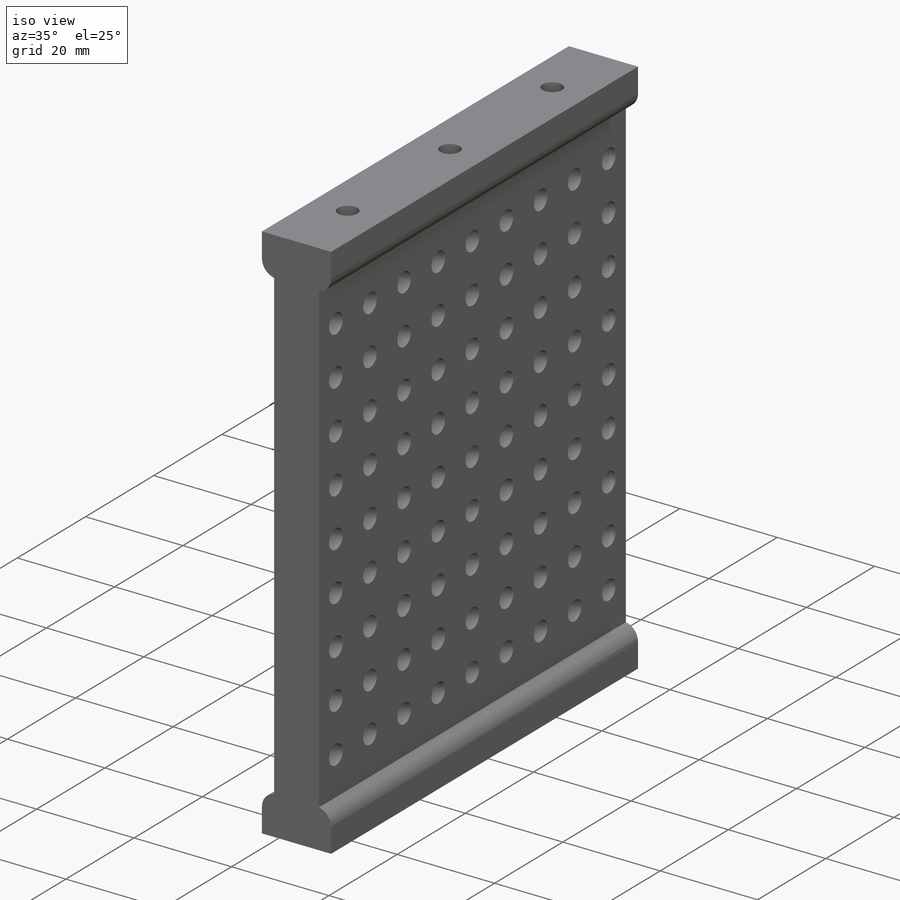
[diagram: iso view]
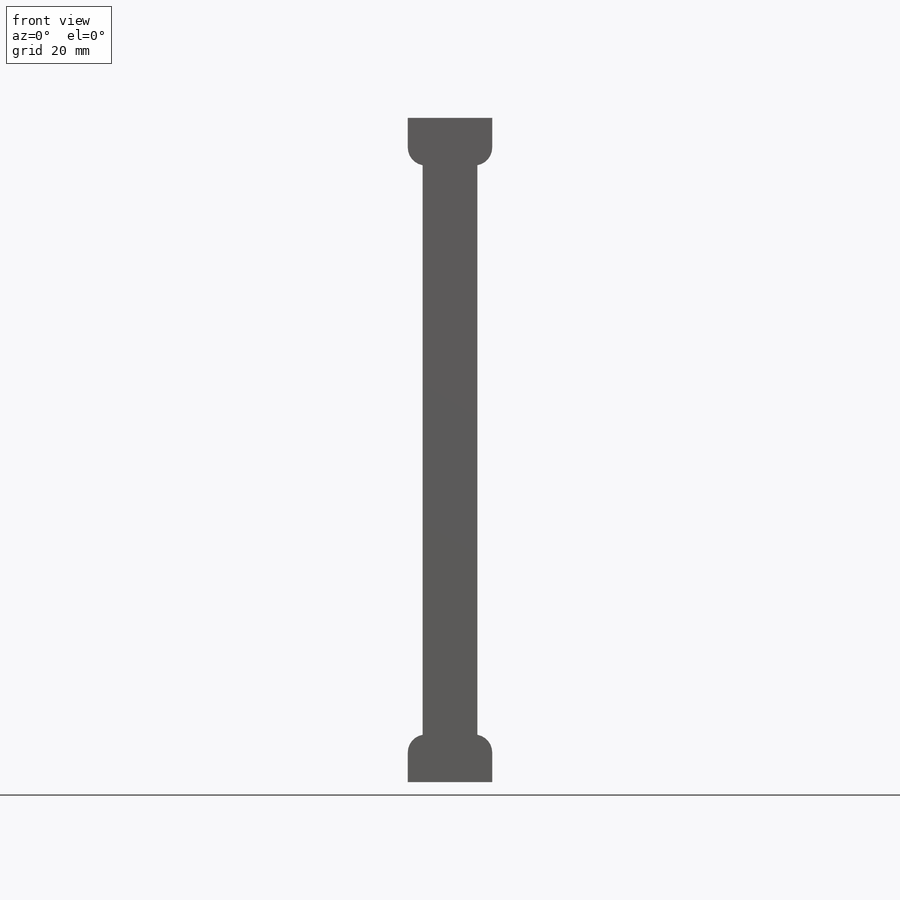
[diagram: front view]
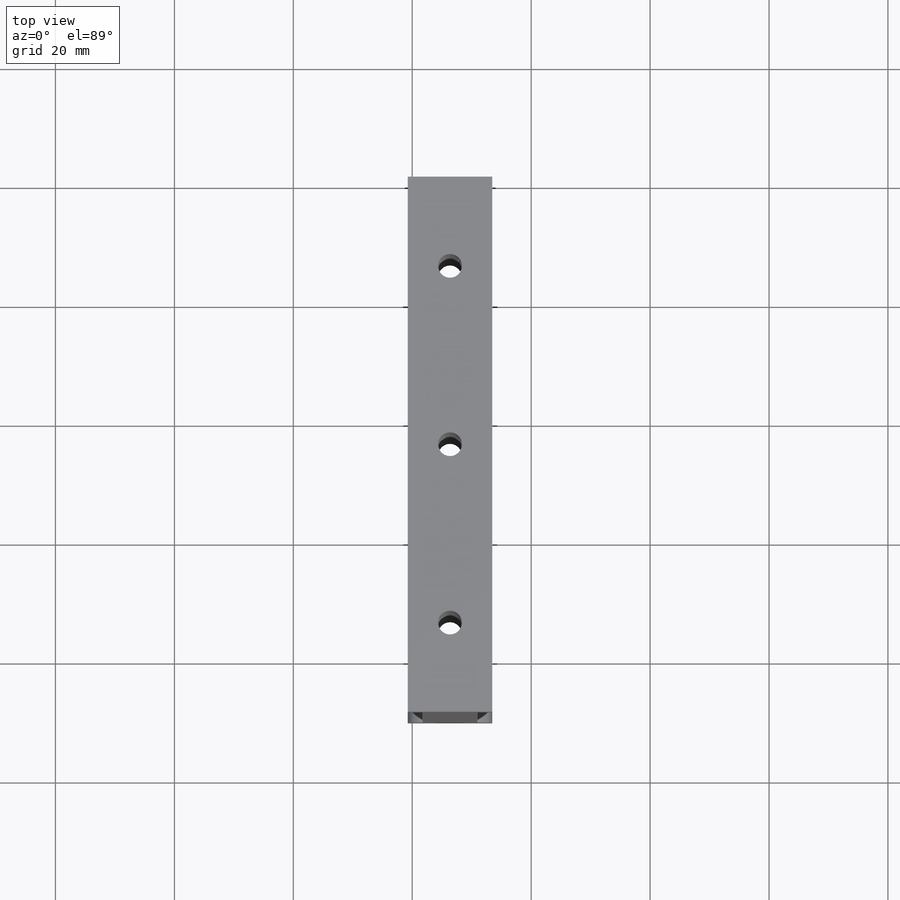
[diagram: top view]
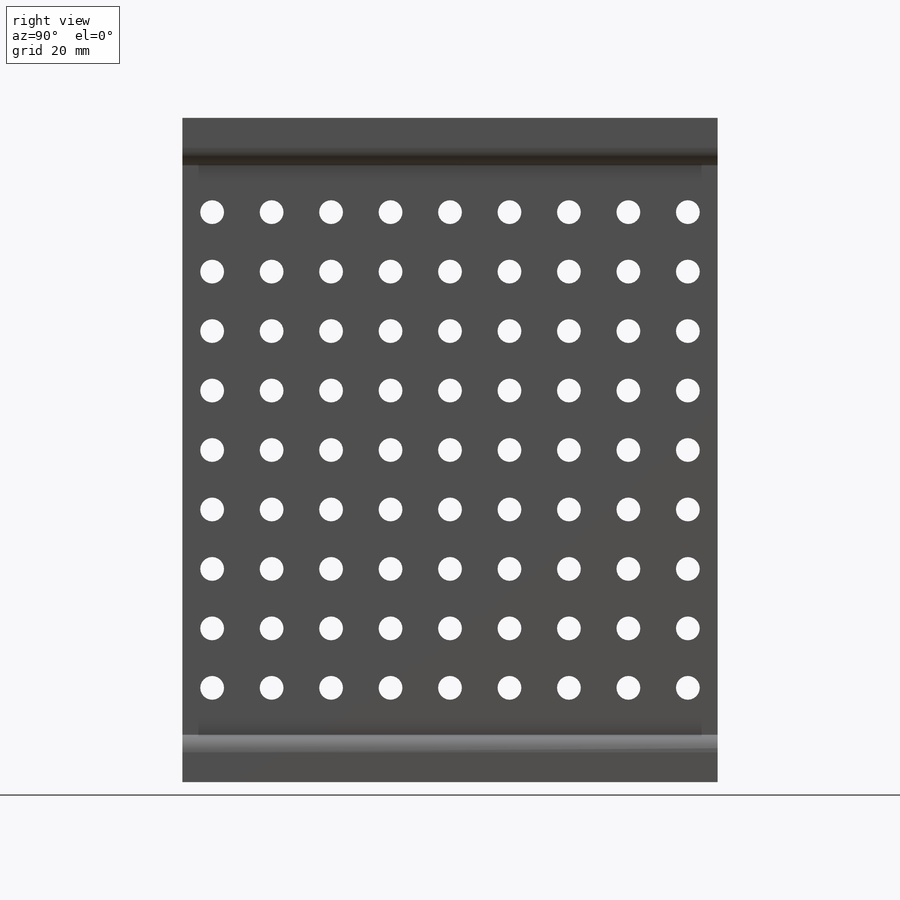
[diagram: right view]
SOLIDWORKS PART (.sldprt)
format: sldprt  version: not decoded by parser v0  size: 814,080 bytes
history: native  units: mm
features: plane x3, sketch x3, cut_extrude x2, material x1, extrude x1 (+10 scaffold rows collapsed)
feature tree (20):
  scaffold x10  (default folders/planes/origin — collapsed)
  material  "Material <não especificado>"
  plane  "Plano frontal"
  plane  "Plano superior"
  plane  "Plano direito"
  sketch  "Esboço1"  dims[c1.D9=3.0mm c1.D10=3.0mm c1.D11=3.0mm c1.D12=3.0mm c1.D1=120.8mm c1.D2=9.2mm c1.D3=14.2mm c1.D4=2.5mm c1.D5=14.2mm c1.D6=2.5mm c1.D7=8.0mm c1.D8=8.0mm c2.D9=2.5mm]
  extrude  "Ressalto-extrusão2"  Depth=90mm
  sketch  "Esboço3"  dims[c1.D1=4.0mm c1.D2=4.0mm c1.D3=30.0mm c1.D5=30.0mm c2.D2=2.0 c2.D4=2.0]
  cut_extrude  "Corte-extrusão1"  Depth=90mm
  sketch  "Esboço4"  dims[D1=4.0mm D4=10.0mm D7=10.0mm D10=10.0mm D13=10.0mm D2=5.0 D3=5.0 D5=5.0 D6=5.0 D8=5.0 D9=5.0 D11=5.0 D12=5.0]
  cut_extrude  "Corte-extrusão3"  Depth=24mm
decode coverage: 6 of 6 modeling features carry decoded parameters
note: suppression state not decoded; provenance and decode notes live in map.json
